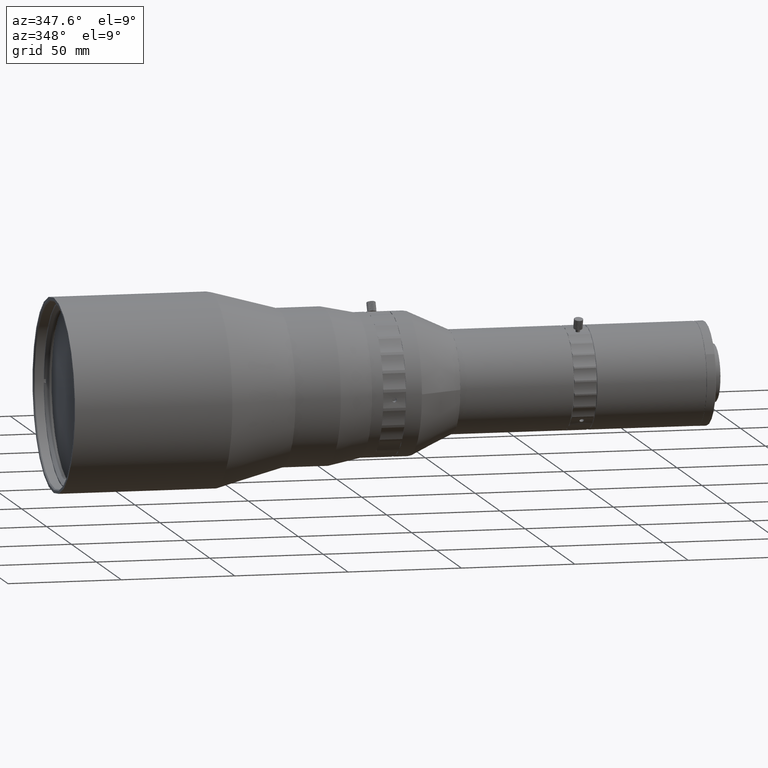
[diagram: clean part render]
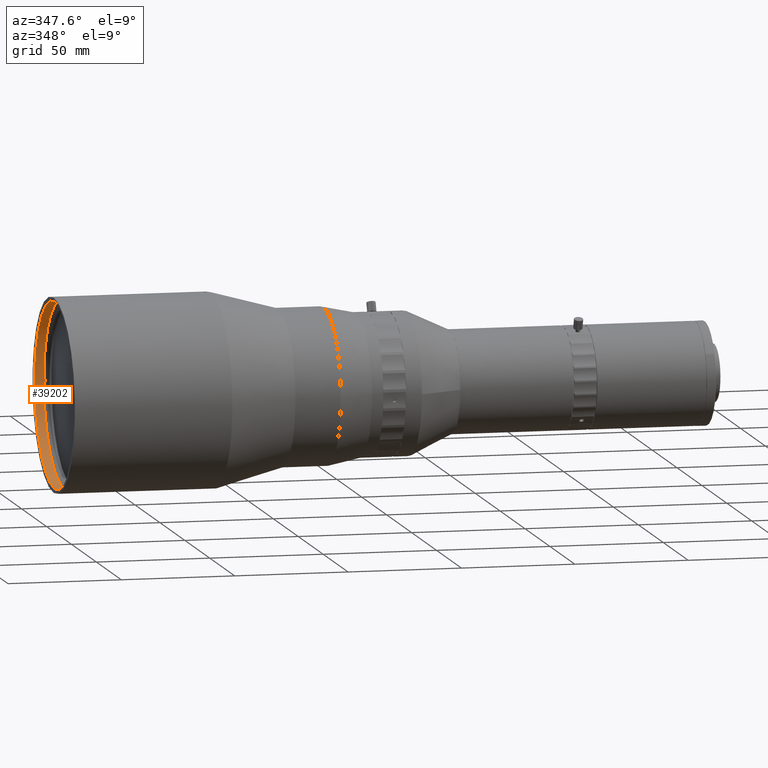
[diagram: same view with one face highlighted and labeled with its STEP entity id]
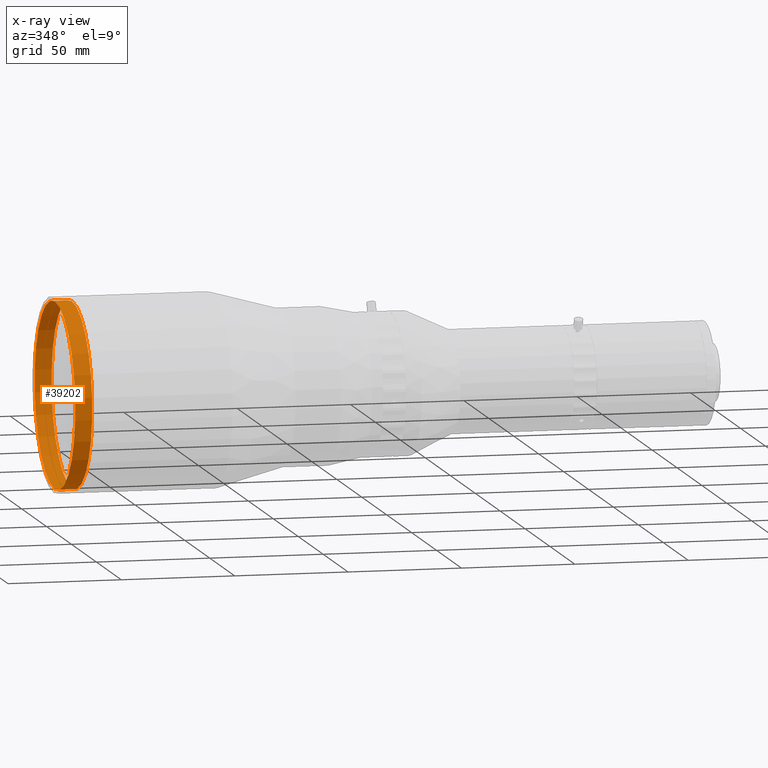
[diagram: x-ray of the same camera — body ghosted, the highlighted face saturated]
A machine part, auxiliary view. The second image highlights one B-rep face of the part: STEP entity #39202.
The next image is the same camera in x-ray: the body ghosted, the highlighted face saturated — about 0% of this face is hidden behind the body in this view.
In plain terms, the highlighted cylindrical surface (bore or boss wall) has radius 40.8 mm, axis along (-1, -0, -0).
Its self-contained STEP definition (entity closure, byte-faithful):
#758 = CARTESIAN_POINT ( 'NONE',  ( -83.08732065252374355, 10.19269740323191975, 195.2499999608849919 ) ) ;
#963 = CIRCLE ( 'NONE', #45563, 40.79999999999972715 ) ;
#4580 = ORIENTED_EDGE ( 'NONE', *, *, #68683, .F. ) ;
#12372 = CYLINDRICAL_SURFACE ( 'NONE', #54024, 40.79999999999972715 ) ;
#13811 = ORIENTED_EDGE ( 'NONE', *, *, #58182, .T. ) ;
#16284 = AXIS2_PLACEMENT_3D ( 'NONE', #41710, #35428, #19443 ) ;
#19443 = DIRECTION ( 'NONE',  ( 0.000000000000000000, 0.000000000000000000, 1.000000000000000000 ) ) ;
#22432 = VERTEX_POINT ( 'NONE', #758 ) ;
#23172 = DIRECTION ( 'NONE',  ( 0.000000000000000000, 0.000000000000000000, 1.000000000000000000 ) ) ;
#23516 = FACE_OUTER_BOUND ( 'NONE', #66478, .T. ) ;
#32904 = CARTESIAN_POINT ( 'NONE',  ( -88.16526710570180114, 10.19269740323191975, 154.4499999608852647 ) ) ;
#34568 = CARTESIAN_POINT ( 'NONE',  ( -75.58732065252124244, 10.19269740323191975, 195.2499999608849919 ) ) ;
#35428 = DIRECTION ( 'NONE',  ( -1.000000000000000000, -0.000000000000000000, -0.000000000000000000 ) ) ;
#39202 = ADVANCED_FACE ( 'NONE', ( #23516, #64947 ), #12372, .F. ) ;
#41710 = CARTESIAN_POINT ( 'NONE',  ( -83.08732065252374355, 10.19269740323191975, 154.4499999608852647 ) ) ;
#44699 = VERTEX_POINT ( 'NONE', #34568 ) ;
#45563 = AXIS2_PLACEMENT_3D ( 'NONE', #46681, #52612, #62977 ) ;
#46681 = CARTESIAN_POINT ( 'NONE',  ( -75.58732065252124244, 10.19269740323191975, 154.4499999608852647 ) ) ;
#47493 = CIRCLE ( 'NONE', #16284, 40.79999999999972715 ) ;
#52612 = DIRECTION ( 'NONE',  ( -1.000000000000000000, -0.000000000000000000, -0.000000000000000000 ) ) ;
#54024 = AXIS2_PLACEMENT_3D ( 'NONE', #32904, #65972, #23172 ) ;
#58182 = EDGE_CURVE ( 'NONE', #22432, #22432, #47493, .T. ) ;
#62977 = DIRECTION ( 'NONE',  ( 0.000000000000000000, 0.000000000000000000, 1.000000000000000000 ) ) ;
#64667 = EDGE_LOOP ( 'NONE', ( #13811 ) ) ;
#64947 = FACE_OUTER_BOUND ( 'NONE', #64667, .T. ) ;
#65972 = DIRECTION ( 'NONE',  ( -1.000000000000000000, -0.000000000000000000, -0.000000000000000000 ) ) ;
#66478 = EDGE_LOOP ( 'NONE', ( #4580 ) ) ;
#68683 = EDGE_CURVE ( 'NONE', #44699, #44699, #963, .T. ) ;